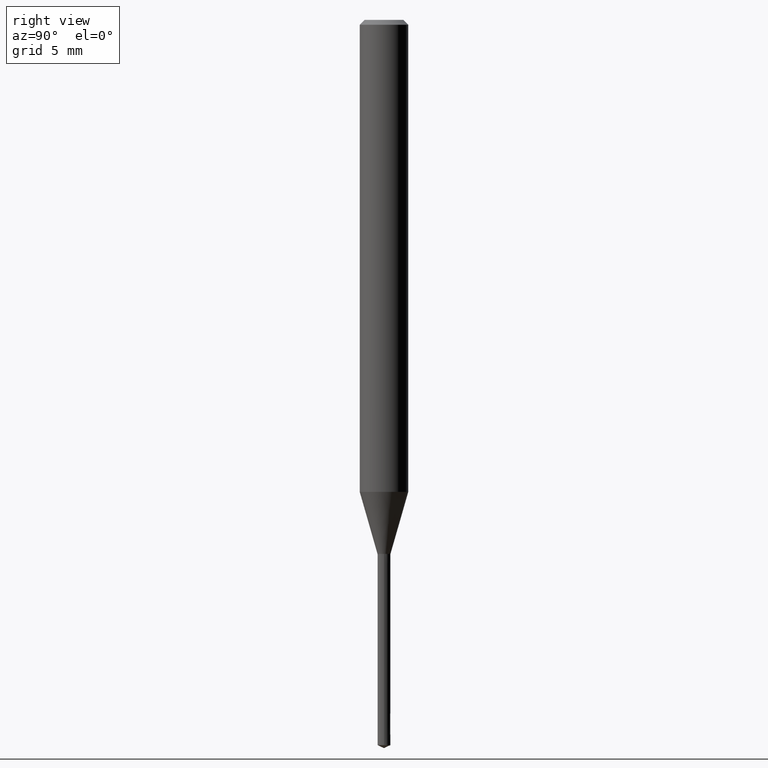
[diagram: clean part render]
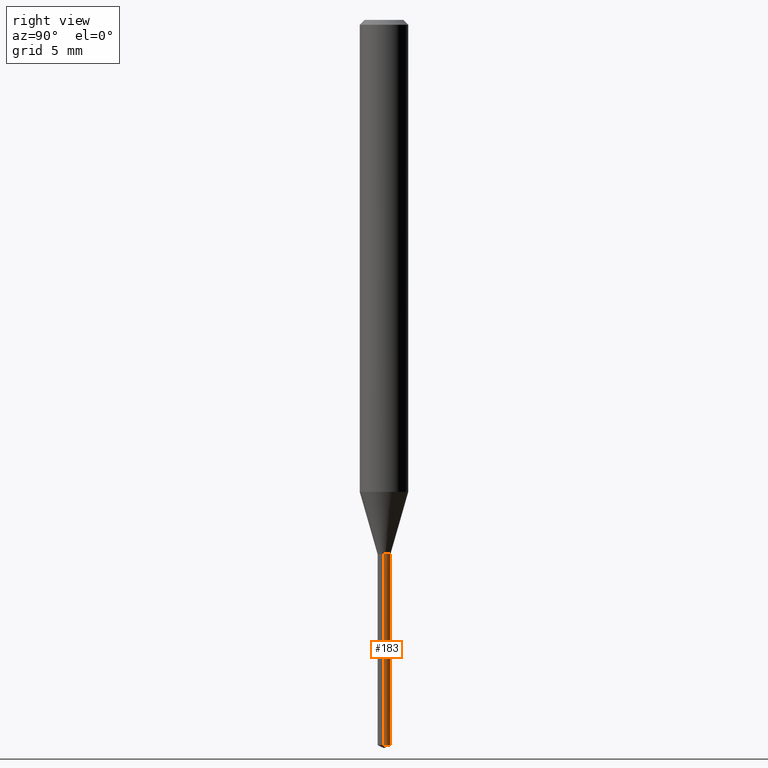
[diagram: same view with one face highlighted and labeled with its STEP entity id]
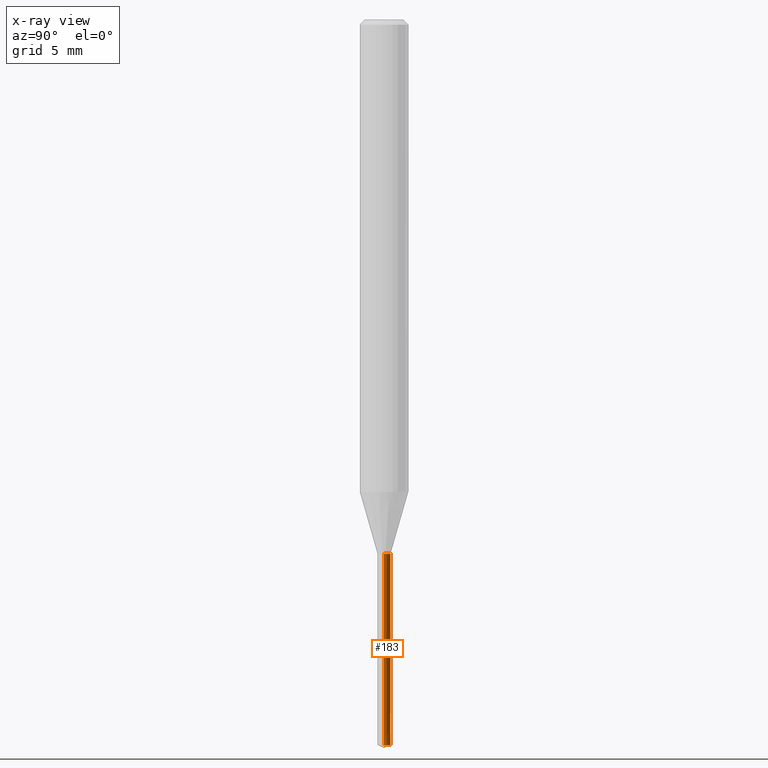
[diagram: x-ray of the same camera — body ghosted, the highlighted face saturated]
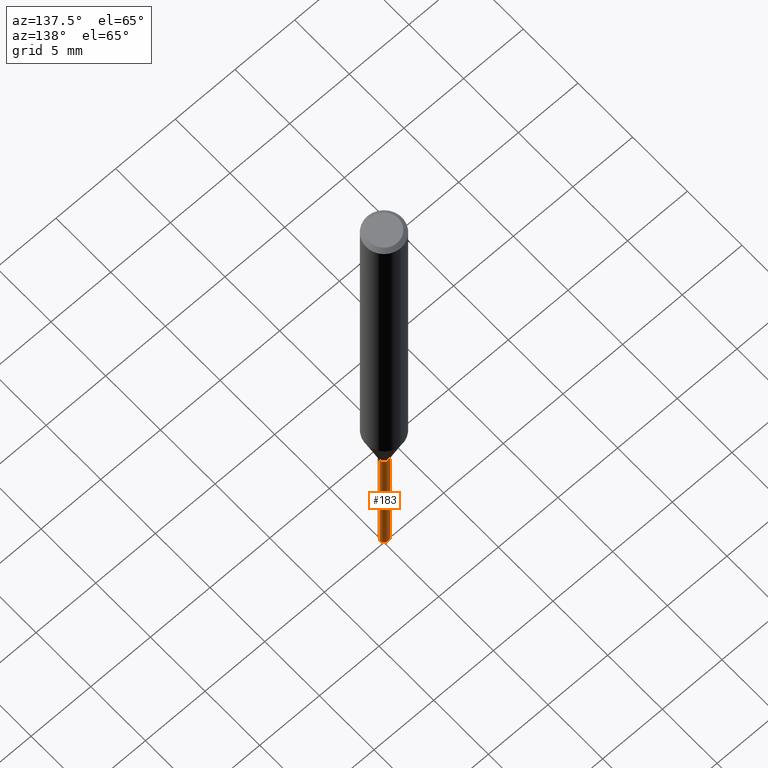
[diagram: same view with one face highlighted and labeled with its STEP entity id]
A machine part, right view. The second image highlights one B-rep face of the part: STEP entity #183.
The next image is the same camera in x-ray: the body ghosted, the highlighted face saturated — about 0% of this face is hidden behind the body in this view.
A second angle (auxiliary view) of the same face is appended — the face is thin or edge-on in the first view.
In plain terms, the highlighted conical surface has half-angle 0.005 deg.
Its self-contained STEP definition (entity closure, byte-faithful):
#95=EDGE_CURVE('',#171,#147,#230,.T.);
#123=EDGE_CURVE('',#147,#139,#265,.T.);
#125=EDGE_CURVE('',#171,#195,#267,.T.);
#137=EDGE_CURVE('',#139,#195,#280,.T.);
#139=VERTEX_POINT('',#282);
#147=VERTEX_POINT('',#292);
#171=VERTEX_POINT('',#319);
#183=ADVANCED_FACE('',(#332),#333,.T.);
#195=VERTEX_POINT('',#345);
#230=LINE('',#374,#375);
#265=CIRCLE('',#418,0.4);
#267=CIRCLE('',#421,0.401);
#280=LINE('',#437,#438);
#282=CARTESIAN_POINT('',(0.4,4.89842541528951E-017,-44.81347694));
#292=CARTESIAN_POINT('',(-0.4,0.0,-44.81347694));
#319=CARTESIAN_POINT('',(-0.401,0.0,-33.0));
#332=FACE_OUTER_BOUND('',#498,.T.);
#333=CONICAL_SURFACE('',#499,0.4005,8.4649083643237E-005);
#345=CARTESIAN_POINT('',(0.401,4.91067147882773E-017,-33.0));
#374=CARTESIAN_POINT('',(-0.4005,-4.90454844705862E-017,-38.90673847));
#375=VECTOR('',#538,1.0);
#418=AXIS2_PLACEMENT_3D('',#603,#604,#605);
#421=AXIS2_PLACEMENT_3D('',#606,#607,#608);
#437=CARTESIAN_POINT('',(0.4005,4.90454844705862E-017,-38.90673847));
#438=VECTOR('',#623,1.0);
#498=EDGE_LOOP('',(#675,#676,#677,#678));
#499=AXIS2_PLACEMENT_3D('',#679,#680,#681);
#538=DIRECTION('',(8.46490835421453E-005,1.03661805550952E-020,-0.999999996417266));
#603=CARTESIAN_POINT('',(0.0,0.0,-44.81347694));
#604=DIRECTION('',(0.0,0.0,-1.0));
#605=DIRECTION('',(-1.0,0.0,0.0));
#606=CARTESIAN_POINT('',(0.0,0.0,-33.0));
#607=DIRECTION('',(0.0,0.0,-1.0));
#608=DIRECTION('',(-1.0,0.0,0.0));
#623=DIRECTION('',(8.46490835421453E-005,1.03661805550952E-020,0.999999996417266));
#675=ORIENTED_EDGE('',*,*,#95,.F.);
#676=ORIENTED_EDGE('',*,*,#125,.T.);
#677=ORIENTED_EDGE('',*,*,#137,.F.);
#678=ORIENTED_EDGE('',*,*,#123,.F.);
#679=CARTESIAN_POINT('',(0.0,0.0,-38.90673847));
#680=DIRECTION('',(-0.0,-0.0,1.0));
#681=DIRECTION('',(-1.0,0.0,0.0));